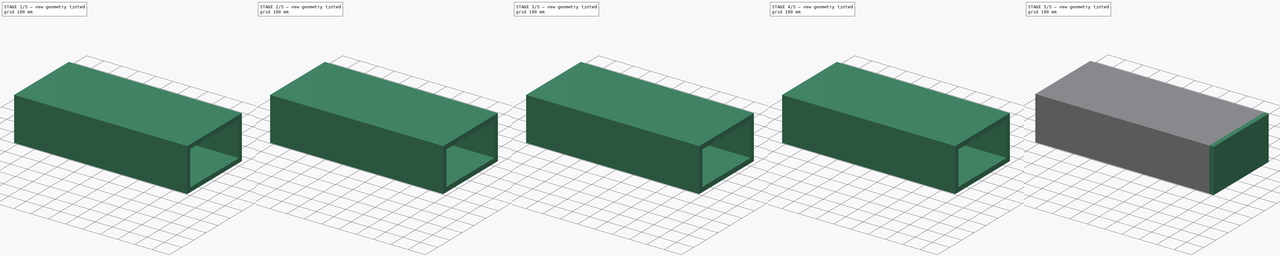
[diagram: build sequence overview — one tinted view per stage of 5, left to right]
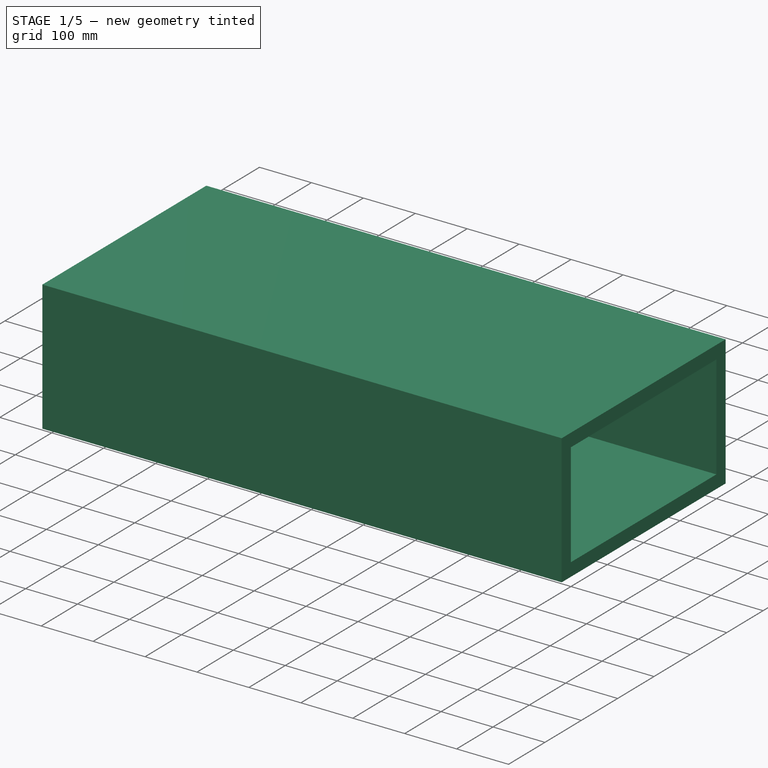
[diagram: stage 1 of 5 — iso view after this stage's code; geometry added in this stage tinted green]
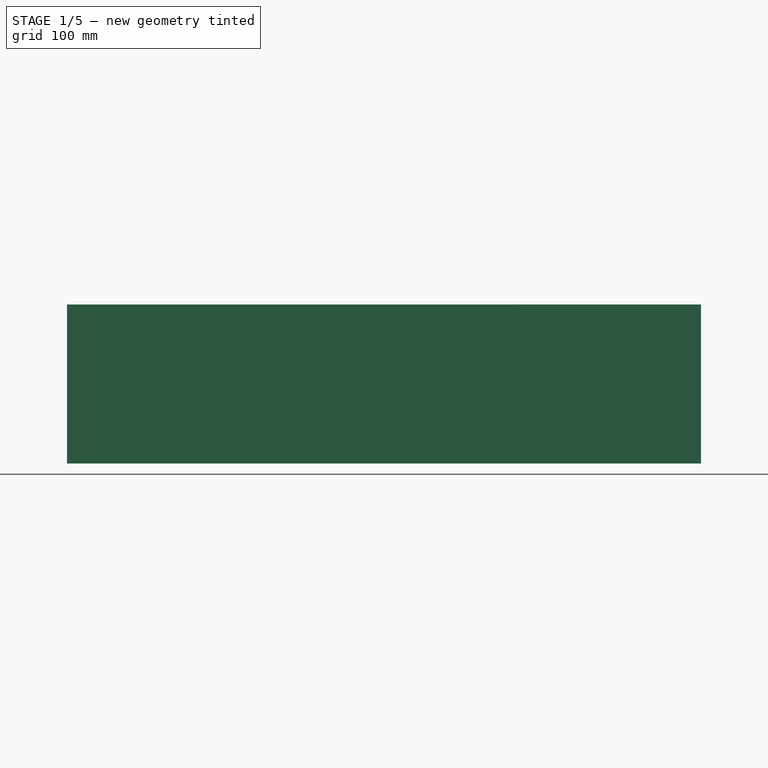
[diagram: stage 1 of 5 — front view after this stage's code; geometry added in this stage tinted green]
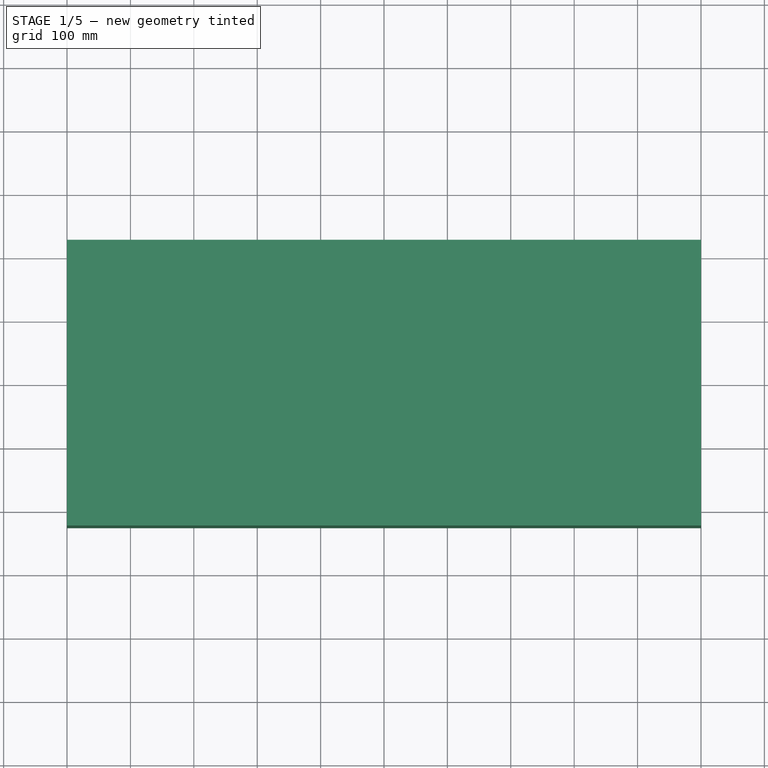
[diagram: stage 1 of 5 — top view after this stage's code; geometry added in this stage tinted green]
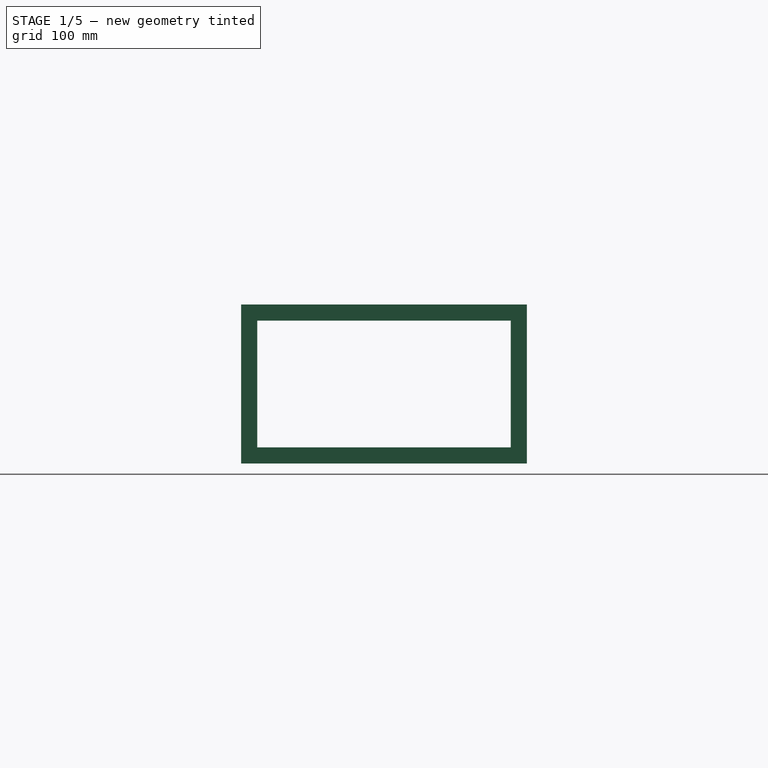
[diagram: stage 1 of 5 — right view after this stage's code; geometry added in this stage tinted green]
FCSTD DOCUMENT  (FreeCAD 0.16R6704 (Git))
Label: Rectangular_duct_reduction
License: All rights reserved
LicenseURL: http://en.wikipedia.org/wiki/All_rights_reserved
objects: Part::FeaturePython×10, App::DocumentObjectGroup×8, Sketcher::SketchObject×6, Part::Extrusion×4, Part::Sweep×2, Part::Thickness×2, Part::Cut×2, Part::MultiFuse×1, Spreadsheet::Sheet×1
note: 27 computed .brp shape members not serialized (recipe doc carries the construction recipe); baked Part::Feature solids carry a one-line shape summary decoded from their .brp

FEATURE [Sketcher::SketchObject] Sketch002  label="LENGHT_rectangular_duct"
  expr: Constraints.Duct_length = Settings_rectangular_duct.length_piece
  sketch-geometry (1):
    g0: LineSegment StartX=0 StartY=0 StartZ=0 EndX=1000 EndY=0 EndZ=0
  constraints (3):
    c: Coincident(g0,g-1)
    c: Horizontal(g0)
    c: DistanceX(g0,g0) = 1000  'Duct_length'
FEATURE [Sketcher::SketchObject] Sketch005  label="DIMENSIONS_rectangle_01"
  Placement = pos=(0,0,0) rot=(0.57735,0.57735,0.57735;2.0944rad)
  expr: Constraints.Height_duct = Settings_rectangular_duct.h_side_1
  expr: Constraints.Duct_width = Settings_rectangular_duct.w_side_1
  sketch-geometry (7):
    g0: LineSegment StartX=-200 StartY=100 StartZ=0 EndX=200 EndY=100 EndZ=0
    g1: LineSegment StartX=200 StartY=100 StartZ=0 EndX=200 EndY=-100 EndZ=0
    g2: LineSegment StartX=200 StartY=-100 StartZ=0 EndX=-200 EndY=-100 EndZ=0
    g3: LineSegment StartX=-200 StartY=-100 StartZ=0 EndX=-200 EndY=100 EndZ=0
    g4: LineSegment [constr] StartX=-200 StartY=100 StartZ=0 EndX=200 EndY=-100 EndZ=0
    g5: LineSegment [constr] StartX=-200 StartY=-100 StartZ=0 EndX=200 EndY=100 EndZ=0
    g6: GeomPoint [constr] X=0 Y=0 Z=0
  constraints (18):
    c: Coincident(g0,g1)
    c: Coincident(g1,g2)
    c: Coincident(g2,g3)
    c: Coincident(g3,g0)
    c: Horizontal(g0)
    c: Horizontal(g2)
    c: Vertical(g1)
    c: Vertical(g3)
    c: DistanceX(g0,g0) = 400  'Duct_width'
    c: DistanceY(g1,g1) = 200  'Height_duct'
    c: Coincident(g4,g0)
    c: Coincident(g4,g1)
    c: Coincident(g5,g2)
    c: Coincident(g5,g0)
    c: PointOnObject(g6,g4)
    c: PointOnObject(g6,g5)
    c: DistanceY(g-1,g6) = 0  'Vertical_distance_axis'
    c: DistanceX(g-1,g6) = 0  'Horizontal_distance_axis'
FEATURE [Part::Sweep] Sweep003  label="Base_01_rectangular_duct"
  Frenet = false
  Sections = -> [Sketch005]
  Solid = true
  Spine = -> Sketch002 [Edge1]
  Transition = 1
FEATURE [Sketcher::SketchObject] Sketch009  label="DIMENSIONS_rectangle_02"
  ExternalGeometry = -> [Sweep003]
  Placement = pos=(1000,0,0) rot=(0.57735,0.57735,0.57735;2.0944rad)
  Support = -> Sweep003 [Face6]
  expr: Constraints.Horizontal_distance_axis = Settings_rectangular_duct.d_h_axis_02
  expr: Constraints.Duct_height = Settings_rectangular_duct.h_side_2
  expr: Constraints.Duct_width = Settings_rectangular_duct.w_side_2
  expr: Constraints.Vertical_distance_axis = Settings_rectangular_duct.d_v_axis_02
  sketch-geometry (10):
    g0: LineSegment [constr] StartX=-200 StartY=100 StartZ=0 EndX=200 EndY=-100 EndZ=0
    g1: LineSegment [constr] StartX=200 StartY=100 StartZ=0 EndX=-200 EndY=-100 EndZ=0
    g2: GeomPoint [constr] X=0 Y=0 Z=0
    g3: LineSegment StartX=-200 StartY=100 StartZ=0 EndX=200 EndY=100 EndZ=0
    g4: LineSegment StartX=200 StartY=100 StartZ=0 EndX=200 EndY=-100 EndZ=0
    g5: LineSegment StartX=200 StartY=-100 StartZ=0 EndX=-200 EndY=-100 EndZ=0
    g6: LineSegment StartX=-200 StartY=-100 StartZ=0 EndX=-200 EndY=100 EndZ=0
    g7: LineSegment [constr] StartX=-200 StartY=100 StartZ=0 EndX=200 EndY=-100 EndZ=0
    g8: LineSegment [constr] StartX=-200 StartY=-100 StartZ=0 EndX=200 EndY=100 EndZ=0
    g9: GeomPoint [constr] X=0 Y=0 Z=0
  constraints (24):
    c: Coincident(g0,g-4)
    c: Coincident(g0,g-6)
    c: Coincident(g1,g-5)
    c: Coincident(g1,g-6)
    c: PointOnObject(g2,g1)
    c: PointOnObject(g2,g0)
    c: Coincident(g3,g4)
    c: Coincident(g4,g5)
    c: Coincident(g5,g6)
    c: Coincident(g6,g3)
    c: Horizontal(g3)
    c: Horizontal(g5)
    c: Vertical(g4)
    c: Vertical(g6)
    c: DistanceX(g3,g3) = 400  'Duct_width'
    c: DistanceY(g4,g4) = 200  'Duct_height'
    c: Coincident(g7,g3)
    c: Coincident(g7,g4)
    c: Coincident(g8,g5)
    c: Coincident(g8,g3)
    c: PointOnObject(g9,g8)
    c: PointOnObject(g9,g7)
    c: DistanceY(g-1,g9) = 0  'Vertical_distance_axis'
    c: DistanceX(g-1,g9) = 0  'Horizontal_distance_axis'
FEATURE [Part::Sweep] Sweep011  label="Base_02_rectangular_duct"
  Frenet = false
  Sections = -> [Sketch005,Sketch009]
  Solid = true
  Spine = -> Sketch002 [Edge1]
  Transition = 1
FEATURE [Part::Thickness] Thickness003  label="2.1-Insulation_THICKNESS"
  Faces = -> Sweep011 [Face5,Face6]
  Intersection = false
  Join = 2
  Mode = 0
  SelfIntersection = false
  Value = 25.4
  expr: Value = Settings_rectangular_duct.insu_thickness
FEATURE [Part::FeaturePython] Clone007  label="Clone of 2.1-Insulation"  # Draft clone (typed FeaturePython)
  Objects = -> [Thickness003]
  Scale = (1,1,1)
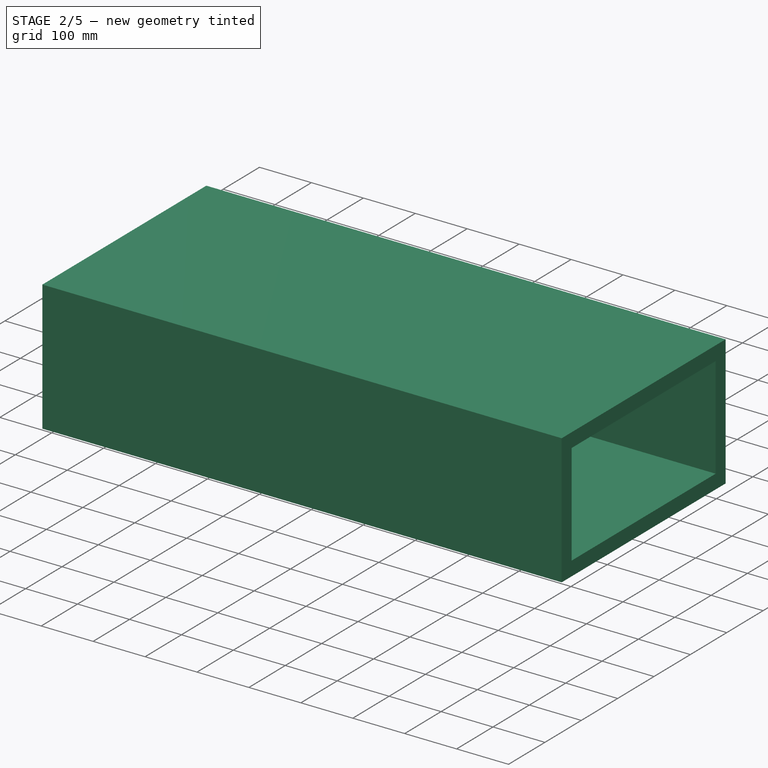
[diagram: stage 2 of 5 — iso view after this stage's code; geometry added in this stage tinted green]
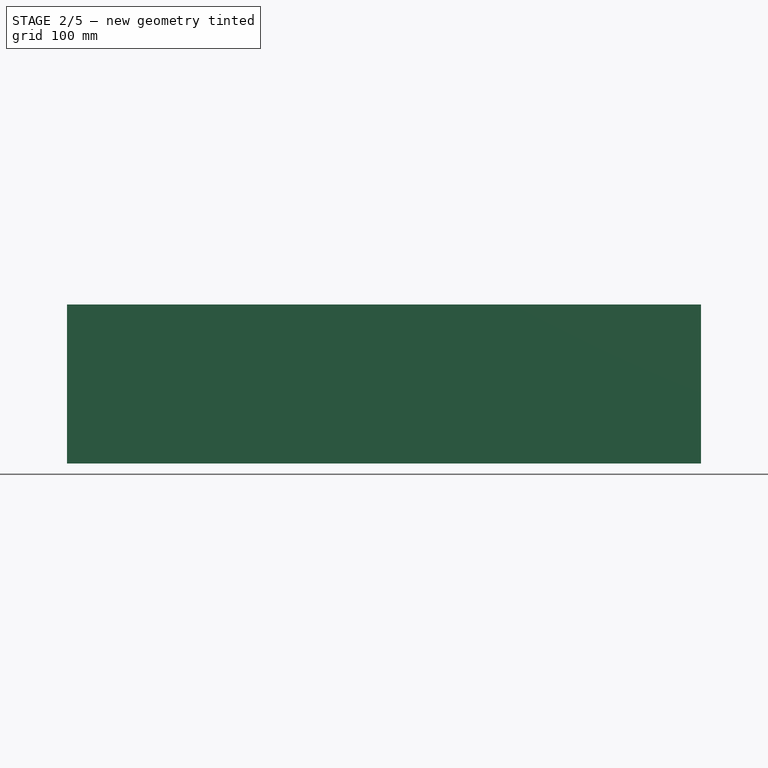
[diagram: stage 2 of 5 — front view after this stage's code; geometry added in this stage tinted green]
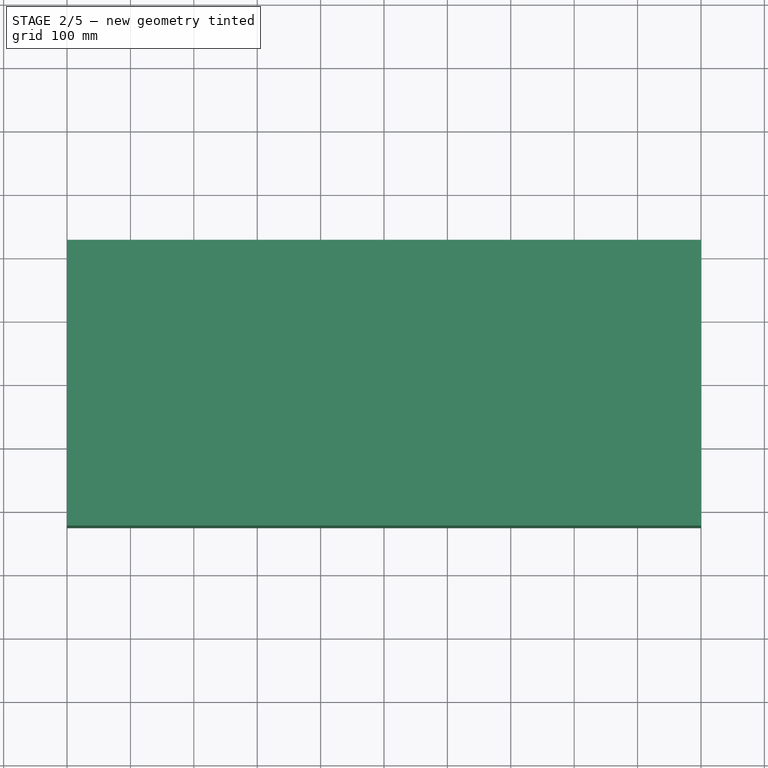
[diagram: stage 2 of 5 — top view after this stage's code; geometry added in this stage tinted green]
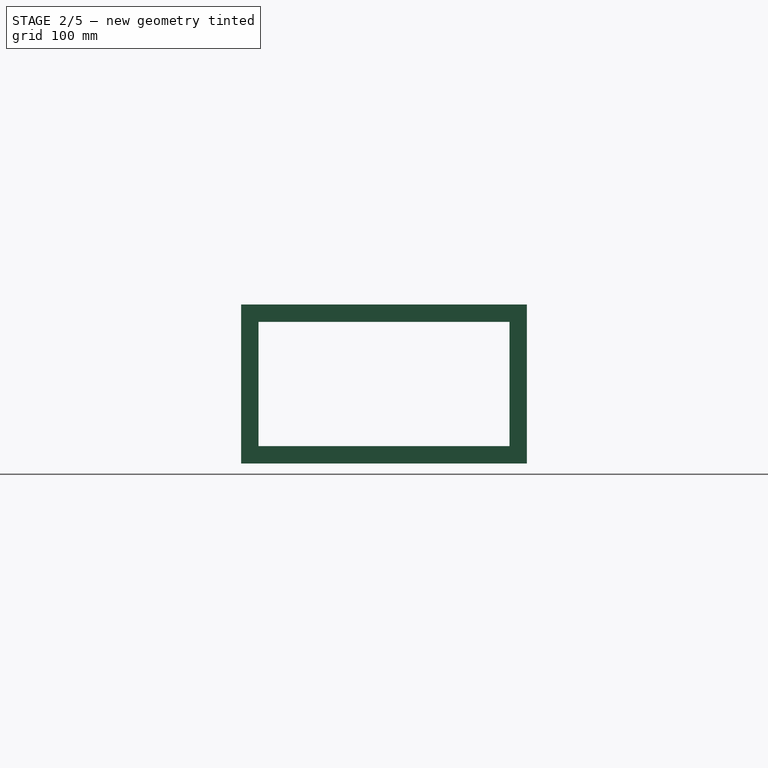
[diagram: stage 2 of 5 — right view after this stage's code; geometry added in this stage tinted green]
FEATURE [App::DocumentObjectGroup] Grupo008  label="A-Bases "
  Group = -> [Sweep003,Sweep011,Sketch002,Sketch,Sketch020]
FEATURE [Part::Thickness] Thickness002  label="1.1-Rectangular_duct_SHEET_THICKNESS"
  Faces = -> Sweep011 [Face5,Face6]
  Intersection = false
  Join = 0
  Mode = 0
  SelfIntersection = false
  Value = -2
  expr: Value = Settings_rectangular_duct.sheet_thickness * -1
FEATURE [Part::FeaturePython] Clone006  label="Clone of 1.1-Rectangular_duct_SHEET_THICKNESS"  # Draft clone (typed FeaturePython)
  Objects = -> [Thickness002]
  Scale = (1,1,1)
FEATURE [App::DocumentObjectGroup] Grupo029  label="Flanges"
  Group = -> [Clone004,Clone005,Array004,Array005]
FEATURE [Part::FeaturePython] Array006  label="1.1-Rectangular_duct_SHEET_THICKNESS001"  # Draft array (typed FeaturePython)
  Angle = 360
  ArrayType = 0
  Axis = (0,0,1)
  Base = -> Clone006
  Center = (0,0,0)
  Fuse = false
  IntervalAxis = (0,0,0)
  IntervalX = (1000,0,0)
  IntervalY = (0,0,0)
  IntervalZ = (0,0,0)
  NumberPolar = 1
  NumberX = 1
  NumberY = 1
  NumberZ = 1
  expr: NumberX = Settings_rectangular_duct.n_units
  expr: IntervalX.x = Settings_rectangular_duct.length_piece
FEATURE [Part::FeaturePython] Array007  label="2.1-Insulation"  # Draft array (typed FeaturePython)
  Angle = 360
  ArrayType = 0
  Axis = (0,0,1)
  Base = -> Clone007
  Center = (0,0,0)
  Fuse = false
  IntervalAxis = (0,0,0)
  IntervalX = (1000,0,0)
  IntervalY = (0,0,0)
  IntervalZ = (0,0,0)
  NumberPolar = 1
  NumberX = 1
  NumberY = 1
  NumberZ = 1
  expr: NumberX = Settings_rectangular_duct.n_units
  expr: IntervalX.x = Settings_rectangular_duct.length_piece
FEATURE [App::DocumentObjectGroup] Grupo028  label="No_flanges"
  Group = -> [Clone006,Clone007,Array006,Array007]
FEATURE [App::DocumentObjectGroup] Grupo027  label="B-Final_parts_clones"
  Group = -> [Grupo028,Grupo029,Group018]
FEATURE [App::DocumentObjectGroup] Grupo002  label="Rectangular_duct_reduction"
  Group = -> [Spreadsheet002,Group010,Grupo027]
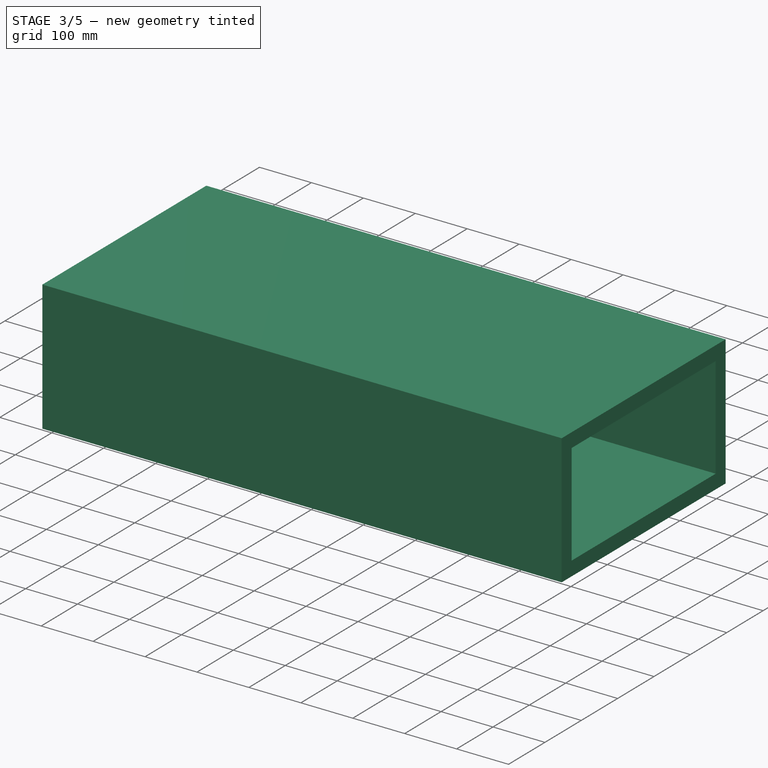
[diagram: stage 3 of 5 — iso view after this stage's code; geometry added in this stage tinted green]
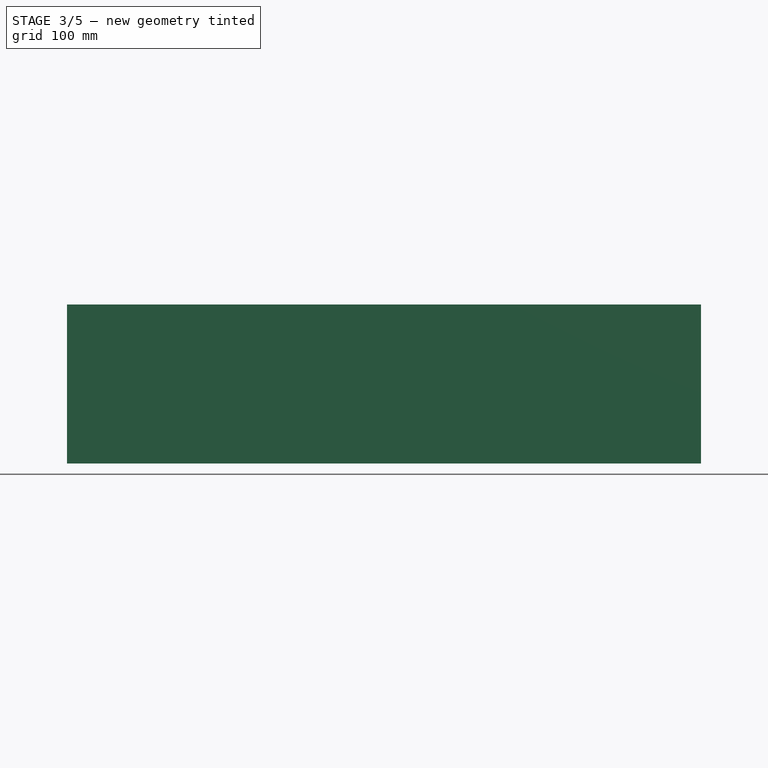
[diagram: stage 3 of 5 — front view after this stage's code; geometry added in this stage tinted green]
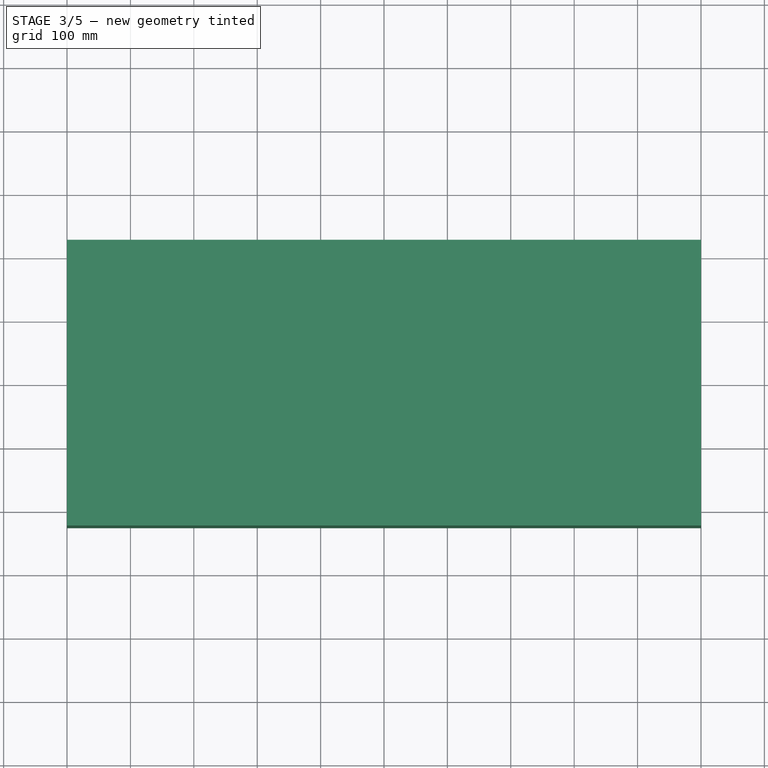
[diagram: stage 3 of 5 — top view after this stage's code; geometry added in this stage tinted green]
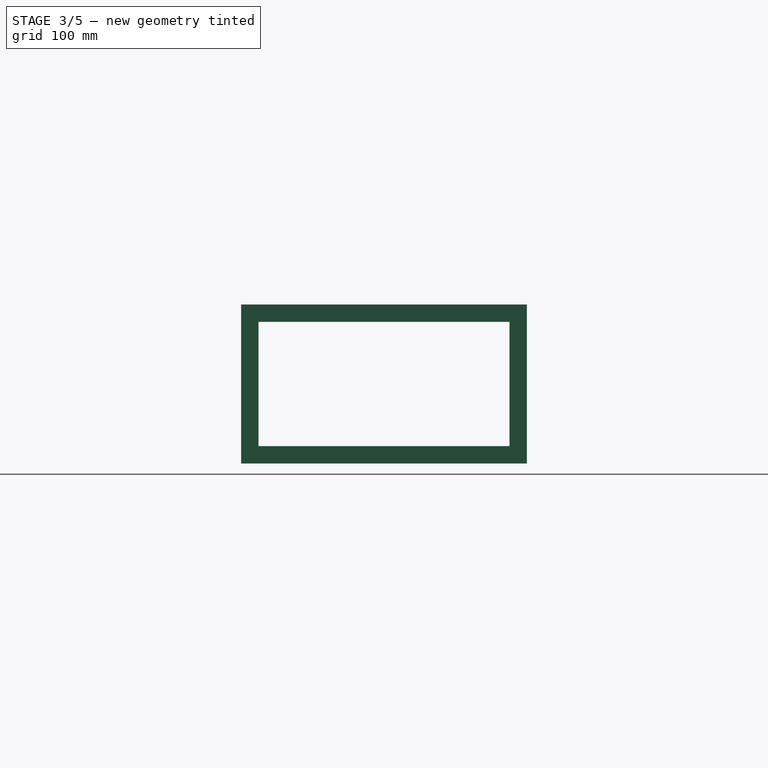
[diagram: stage 3 of 5 — right view after this stage's code; geometry added in this stage tinted green]
FEATURE [Sketcher::SketchObject] Sketch020  label="FLANGE_HEIGHT_01"
  ExternalGeometry = -> [Sweep003]
  Placement = pos=(0,0,0) rot=(0.57735,-0.57735,-0.57735;2.0944rad)
  Support = -> Sweep003 [Face5]
  expr: Constraints.Flange = Settings_rectangular_duct.flange_height
  sketch-geometry (12):
    g0: LineSegment StartX=-200 StartY=100 StartZ=0 EndX=200 EndY=100 EndZ=0
    g1: LineSegment StartX=200 StartY=100 StartZ=0 EndX=200 EndY=-100 EndZ=0
    g2: LineSegment StartX=200 StartY=-100 StartZ=0 EndX=-200 EndY=-100 EndZ=0
    g3: LineSegment StartX=-200 StartY=-100 StartZ=0 EndX=-200 EndY=100 EndZ=0
    g4: LineSegment StartX=-215 StartY=115 StartZ=0 EndX=215 EndY=115 EndZ=0
    g5: LineSegment StartX=215 StartY=115 StartZ=0 EndX=215 EndY=-115 EndZ=0
    g6: LineSegment StartX=215 StartY=-115 StartZ=0 EndX=-215 EndY=-115 EndZ=0
    g7: LineSegment StartX=-215 StartY=-115 StartZ=0 EndX=-215 EndY=115 EndZ=0
    g8: LineSegment [constr] StartX=-200 StartY=100 StartZ=0 EndX=-200 EndY=115 EndZ=0
    g9: LineSegment [constr] StartX=-200 StartY=100 StartZ=0 EndX=-215 EndY=100 EndZ=0
    g10: LineSegment [constr] StartX=200 StartY=-100 StartZ=0 EndX=215 EndY=-100 EndZ=0
    g11: LineSegment [constr] StartX=200 StartY=-115 StartZ=0 EndX=200 EndY=-100 EndZ=0
  constraints (38):
    c: Coincident(g0,g1)
    c: Coincident(g1,g2)
    c: Coincident(g2,g3)
    c: Coincident(g3,g0)
    c: Horizontal(g0)
    c: Horizontal(g2)
    c: Vertical(g1)
    c: Vertical(g3)
    c: Coincident(g4,g5)
    c: Coincident(g5,g6)
    c: Coincident(g6,g7)
    c: Coincident(g7,g4)
    c: Horizontal(g4)
    c: Horizontal(g6)
    c: Vertical(g5)
    c: Vertical(g7)
    c: DistanceX(g4,g0) = 15  'Flange'
    c: PointOnObject(g8,g0)
    c: PointOnObject(g9,g3)
    c: PointOnObject(g9,g7)
    c: PointOnObject(g10,g1)
    c: PointOnObject(g10,g5)
    c: PointOnObject(g8,g4)
    c: Angle(g8) = 1.5708
    c: Angle(g9) = 3.14159
    c: Coincident(g0,g9)
    c: Coincident(g0,g8)
    c: Angle(g10) = 0
    c: Angle(g11) = 1.5708
    c: PointOnObject(g11,g2)
    c: PointOnObject(g11,g6)
    c: Equal(g10,g11)
    c: Equal(g11,g8)
    c: Equal(g8,g9)
    c: Coincident(g10,g1)
    c: Coincident(g11,g1)
    c: Coincident(g2,g-5)
    c: Coincident(g-6,g0)
FEATURE [Part::Extrusion] Extrude_Sketch020  label="Flange_THICKNESS_01"
  Base = -> Sketch020
  Dir = (2,0,0)
  Solid = true
  expr: Dir.x = Settings_rectangular_duct.flange_thickness
FEATURE [Part::Extrusion] Extrude_Sketch009  label="03-Cap"
  Base = -> Sketch009
  Dir = (-2,0,0)
  Solid = true
  expr: Dir.x = Settings_rectangular_duct.sheet_thickness * -1
FEATURE [Sketcher::SketchObject] Sketch  label="FLANGE_HEIGHT_02"
  ExternalGeometry = -> [Extrude_Sketch009]
  Placement = pos=(1000,0,0) rot=(0.57735,0.57735,0.57735;2.0944rad)
  Support = -> Extrude_Sketch009 [Face5]
  expr: Constraints.Flange = Settings_rectangular_duct.flange_height
  sketch-geometry (12):
    g0: LineSegment StartX=-200 StartY=100 StartZ=0 EndX=200 EndY=100 EndZ=0
    g1: LineSegment StartX=200 StartY=100 StartZ=0 EndX=200 EndY=-100 EndZ=0
    g2: LineSegment StartX=200 StartY=-100 StartZ=0 EndX=-200 EndY=-100 EndZ=0
    g3: LineSegment StartX=-200 StartY=-100 StartZ=0 EndX=-200 EndY=100 EndZ=0
    g4: LineSegment StartX=-215 StartY=115 StartZ=0 EndX=215 EndY=115 EndZ=0
    g5: LineSegment StartX=215 StartY=115 StartZ=0 EndX=215 EndY=-115 EndZ=0
    g6: LineSegment StartX=215 StartY=-115 StartZ=0 EndX=-215 EndY=-115 EndZ=0
    g7: LineSegment StartX=-215 StartY=-115 StartZ=0 EndX=-215 EndY=115 EndZ=0
    g8: LineSegment [constr] StartX=-215 StartY=100 StartZ=0 EndX=-200 EndY=100 EndZ=0
    g9: LineSegment [constr] StartX=-200 StartY=100 StartZ=0 EndX=-200 EndY=115 EndZ=0
    g10: LineSegment [constr] StartX=200 StartY=-100 StartZ=0 EndX=215 EndY=-100 EndZ=0
    g11: LineSegment [constr] StartX=200 StartY=-100 StartZ=0 EndX=200 EndY=-115 EndZ=0
  constraints (38):
    c: Coincident(g0,g1)
    c: Coincident(g1,g2)
    c: Coincident(g2,g3)
    c: Coincident(g3,g0)
    c: Horizontal(g0)
    c: Horizontal(g2)
    c: Vertical(g1)
    c: Vertical(g3)
    c: Coincident(g4,g5)
    c: Coincident(g5,g6)
    c: Coincident(g6,g7)
    c: Coincident(g7,g4)
    c: Horizontal(g4)
    c: Horizontal(g6)
    c: Vertical(g5)
    c: Vertical(g7)
    c: DistanceX(g4,g0) = 15  'Flange'
    c: PointOnObject(g8,g7)
    c: PointOnObject(g9,g0)
    c: PointOnObject(g10,g1)
    c: PointOnObject(g11,g6)
    c: PointOnObject(g9,g4)
    c: PointOnObject(g8,g3)
    c: Angle(g9) = 1.5708
    c: Angle(g8) = 0
    c: PointOnObject(g10,g5)
    c: Angle(g10) = 0
    c: PointOnObject(g11,g2)
    c: Coincident(g11,g1)
    c: Angle(g11) = -1.5708
    c: Coincident(g1,g10)
    c: Coincident(g9,g0)
    c: Coincident(g0,g8)
    c: Equal(g8,g9)
    c: Equal(g9,g10)
    c: Equal(g10,g11)
    c: Coincident(g-5,g0)
    c: Coincident(g-6,g2)
FEATURE [Part::Extrusion] Extrude_Sketch  label="Flange_THICKNESS_02"
  Base = -> Sketch
  Dir = (-2,0,0)
  Solid = true
  expr: Dir.x = Settings_rectangular_duct.flange_thickness * -1
FEATURE [Part::Cut] Cut002  label="Cut"
  Base = -> Thickness003
  Tool = -> Extrude_Sketch020
FEATURE [Part::Cut] Cut003  label="02-Insulation "
  Base = -> Cut002
  Tool = -> Extrude_Sketch
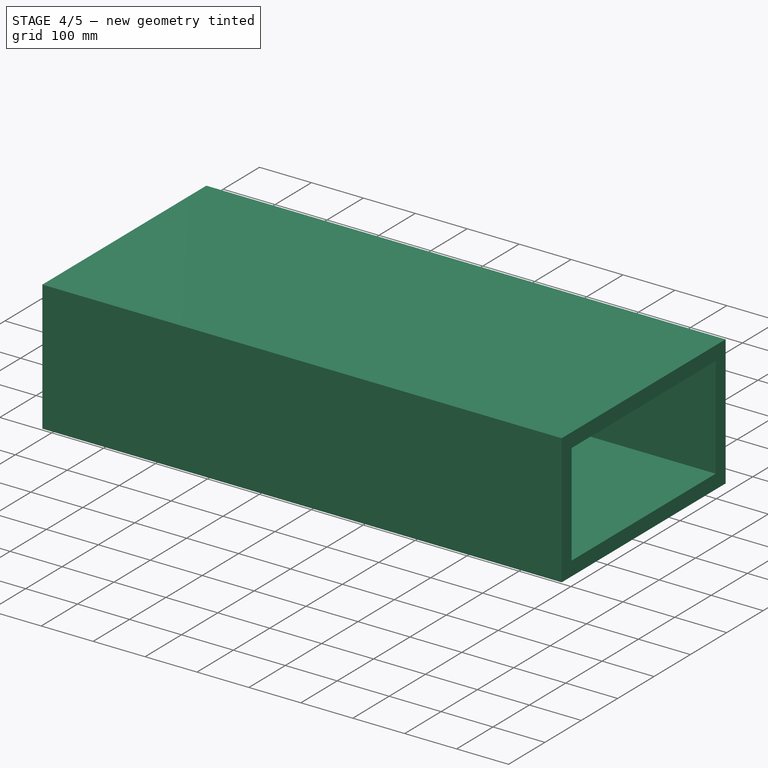
[diagram: stage 4 of 5 — iso view after this stage's code; geometry added in this stage tinted green]
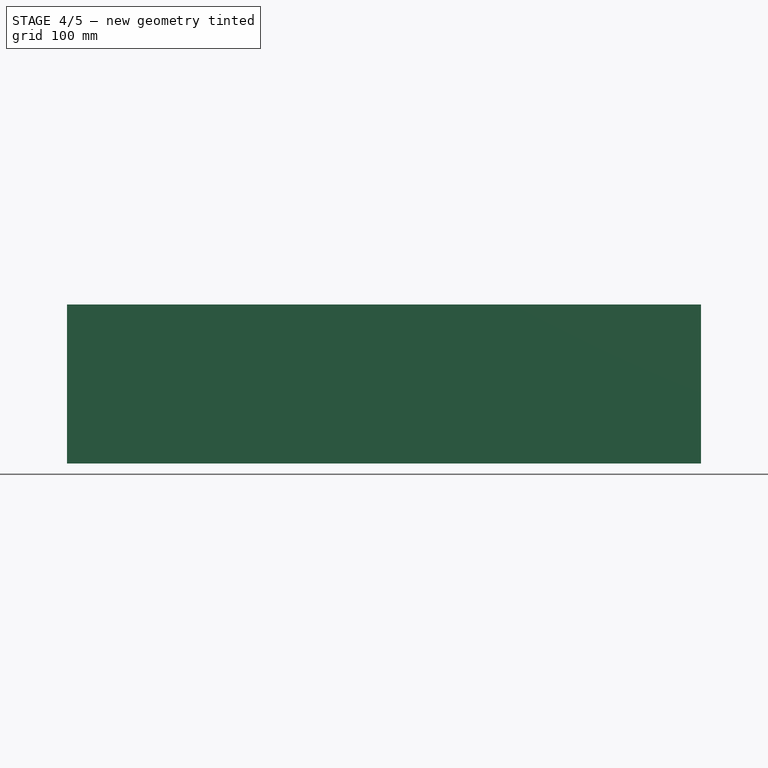
[diagram: stage 4 of 5 — front view after this stage's code; geometry added in this stage tinted green]
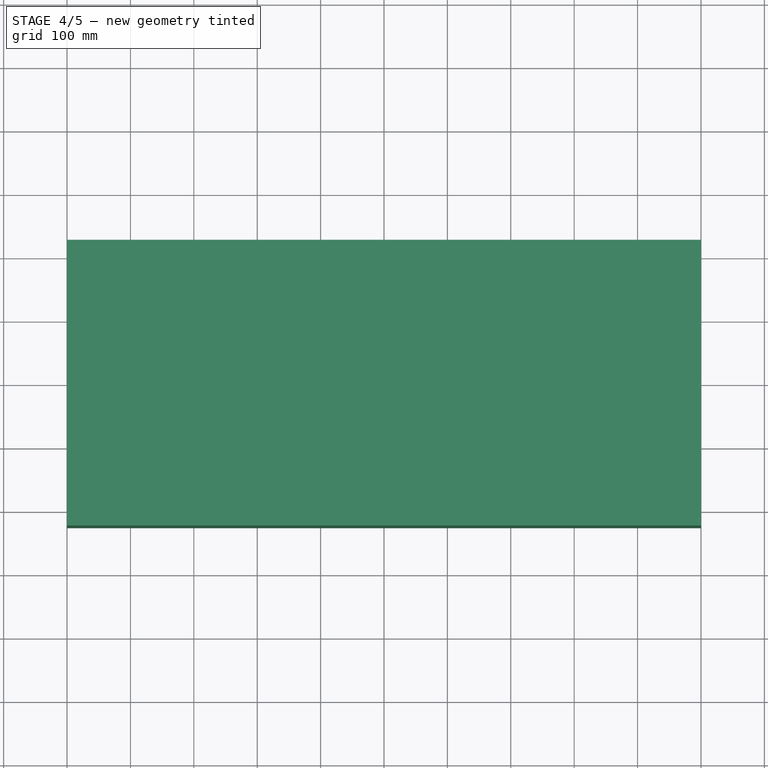
[diagram: stage 4 of 5 — top view after this stage's code; geometry added in this stage tinted green]
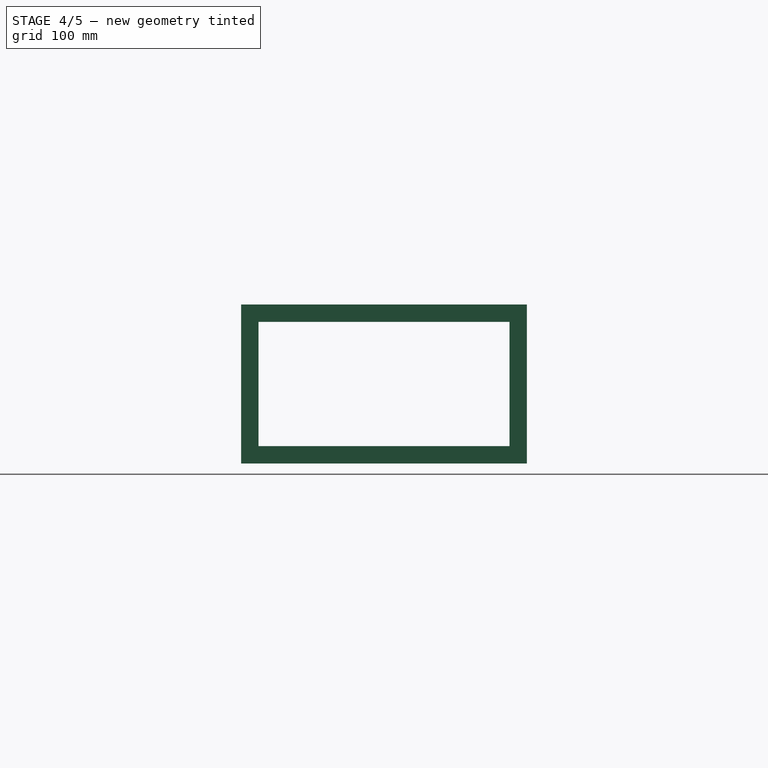
[diagram: stage 4 of 5 — right view after this stage's code; geometry added in this stage tinted green]
FEATURE [Part::MultiFuse] Fusion001  label="01-Rectangular_duct_flanges"
  Shapes = -> [Thickness002,Extrude_Sketch,Extrude_Sketch020]
FEATURE [Part::FeaturePython] Clone004  label="Clone of 01-Duto_retangular_flanges (Rectangular_duct_flanges)"  # Draft clone (typed FeaturePython)
  Objects = -> [Fusion001]
  Scale = (1,1,1)
FEATURE [Part::FeaturePython] Clone005  label="Clone of 02-Isolamento (Insulation) "  # Draft clone (typed FeaturePython)
  Objects = -> [Cut003]
  Scale = (1,1,1)
FEATURE [Part::FeaturePython] Array005  label="02-Isolamento (Insulation) 007"  # Draft array (typed FeaturePython)
  Angle = 360
  ArrayType = 0
  Axis = (0,0,1)
  Base = -> Clone005
  Center = (0,0,0)
  Fuse = false
  IntervalAxis = (0,0,0)
  IntervalX = (1000,0,0)
  IntervalY = (0,0,0)
  IntervalZ = (0,0,0)
  NumberPolar = 1
  NumberX = 1
  NumberY = 1
  NumberZ = 1
  expr: NumberX = Settings_rectangular_duct.n_units
  expr: IntervalX.x = Settings_rectangular_duct.length_piece
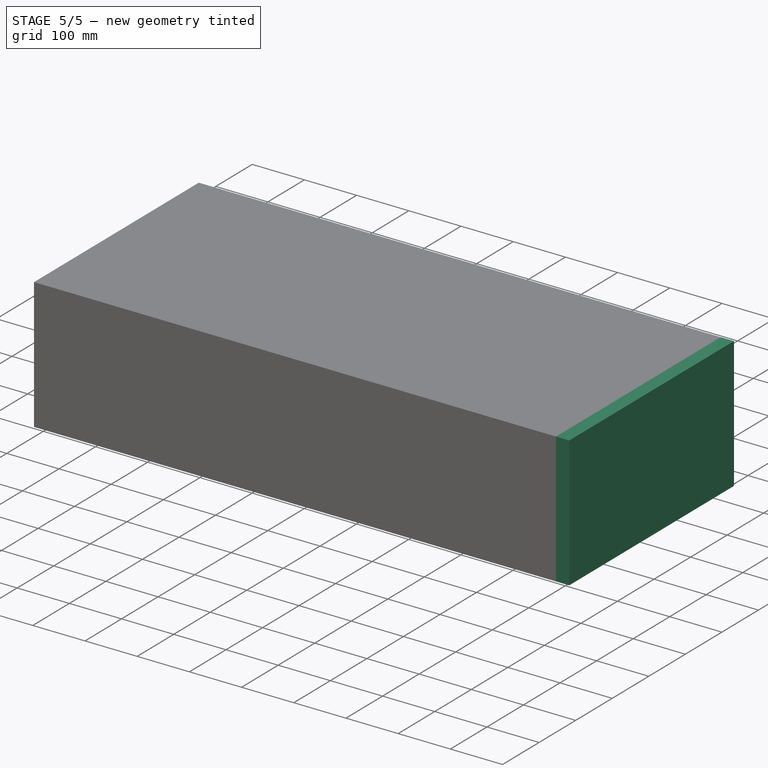
[diagram: stage 5 of 5 — iso view after this stage's code; geometry added in this stage tinted green]
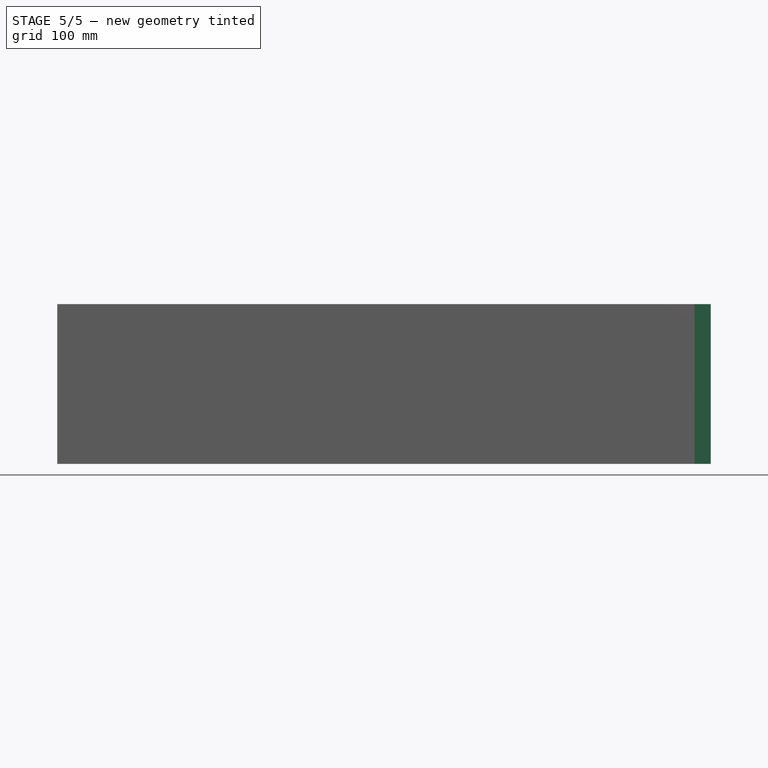
[diagram: stage 5 of 5 — front view after this stage's code; geometry added in this stage tinted green]
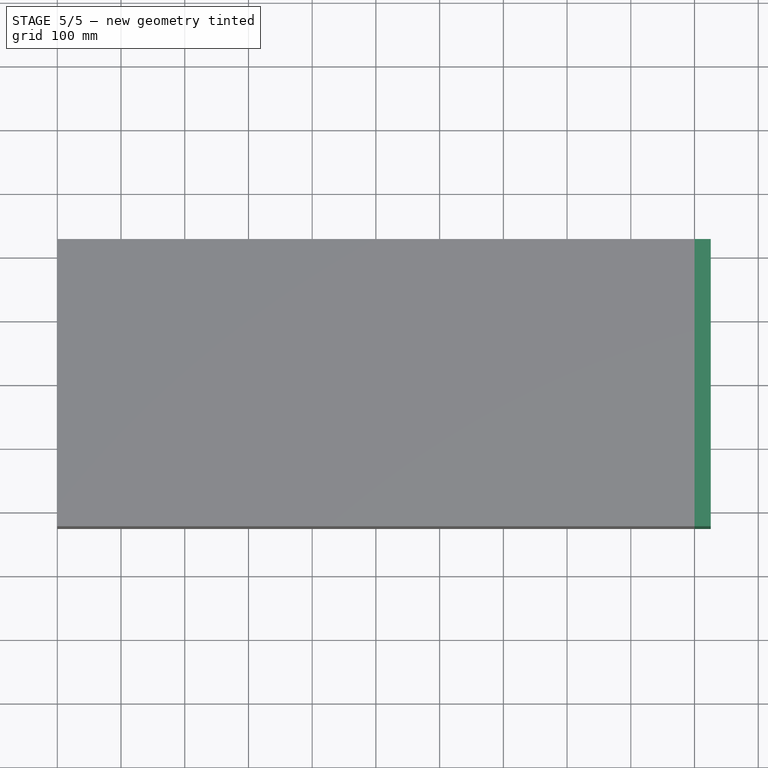
[diagram: stage 5 of 5 — top view after this stage's code; geometry added in this stage tinted green]
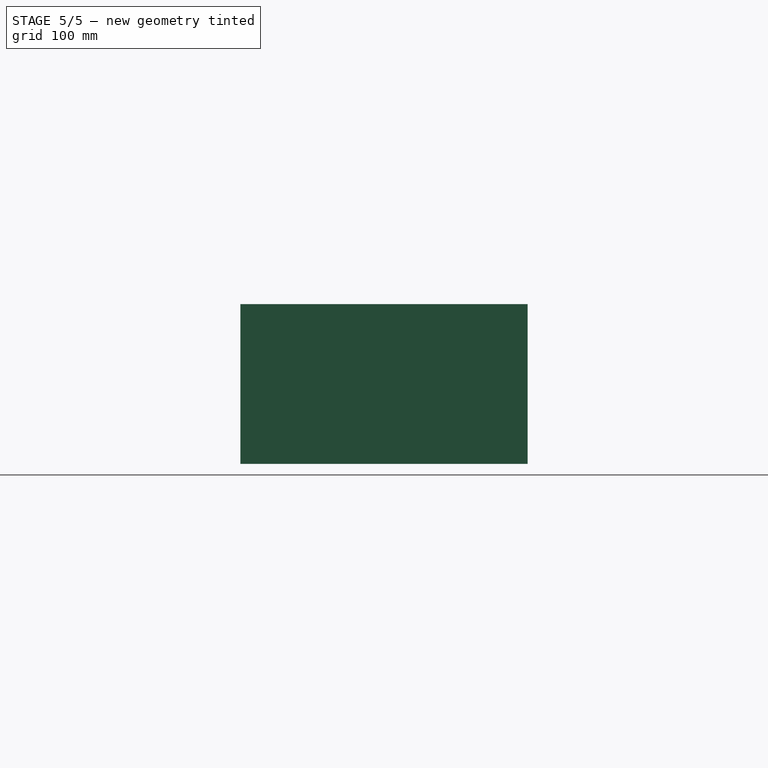
[diagram: stage 5 of 5 — right view after this stage's code; geometry added in this stage tinted green]
FEATURE [Part::FeaturePython] Clone008  label="Clone of 03-Tapa (Cap) "  # Draft clone (typed FeaturePython)
  Objects = -> [Extrude_Sketch009]
  Scale = (1,1,1)
  expr: Placement.Base.x = Spreadsheet002.total_length - Settings_rectangular_duct.length_piece
FEATURE [Sketcher::SketchObject] Sketch057
  ExternalGeometry = -> [Thickness003]
  Placement = pos=(1000,0,0) rot=(0.57735,0.57735,0.57735;2.0944rad)
  Support = -> Thickness003 [Face5]
  sketch-geometry (4):
    g0: LineSegment StartX=225.4 StartY=125.4 StartZ=0 EndX=-225.4 EndY=125.4 EndZ=0
    g1: LineSegment StartX=-225.4 StartY=125.4 StartZ=0 EndX=-225.4 EndY=-125.4 EndZ=0
    g2: LineSegment StartX=-225.4 StartY=-125.4 StartZ=0 EndX=225.4 EndY=-125.4 EndZ=0
    g3: LineSegment StartX=225.4 StartY=-125.4 StartZ=0 EndX=225.4 EndY=125.4 EndZ=0
  constraints (10):
    c: Coincident(g0,g1)
    c: Coincident(g1,g2)
    c: Coincident(g2,g3)
    c: Coincident(g3,g0)
    c: Horizontal(g0)
    c: Horizontal(g2)
    c: Vertical(g1)
    c: Vertical(g3)
    c: Coincident(g-4,g0)
    c: Coincident(g-6,g1)
FEATURE [Part::Extrusion] Extrude_Sketch057  label="04-Cap_insulation"
  Base = -> Sketch057
  Dir = (25.4,0,0)
  Solid = true
  expr: Dir.x = Settings_rectangular_duct.insu_thickness
FEATURE [App::DocumentObjectGroup] Grupo026  label="B-Partes (Parts) "
  Group = -> [Fusion001,Cut003,Extrude_Sketch009,Extrude_Sketch057]
FEATURE [App::DocumentObjectGroup] Group010  label="A-Components"
  Group = -> [Grupo008,Grupo026]
FEATURE [Part::FeaturePython] Clone041  label="Clone of 04-Isolamento_tapa (Cap_insulation)"  # Draft clone (typed FeaturePython)
  Objects = -> [Extrude_Sketch057]
  Scale = (1,1,1)
  expr: Placement.Base.x = Settings_rectangular_duct.total_length - Settings_rectangular_duct.length_piece
FEATURE [App::DocumentObjectGroup] Group018  label="Caps"
  Group = -> [Clone008,Clone041]
FEATURE [Spreadsheet::Sheet] Spreadsheet002  label="Settings_rectangular_duct"
  cells = A1=Dimensionamento - Settings; D2=Comprimento total _Total length; A3=01. Comprimento da peça - Piece length:; B3(length_piece)=1000; C3=Alias: length_piece; D3(total_length)==B3 * B23; A5=02. Lado 1 - Side 1; A6=2.1. Largura do lado 1 - Width side 1:; B6(w_side_1)=400; C6=Alias: w_side_1; A7=2.2. Altura do lado 1 - Height side 1:; B7(h_side_1)=200; C7=Alias: h_side_1; A9=03. Lado 2 - Side 2; A10=3.1. Largura do lado 2 - Width side 2:; B10(w_side_2)=400; C10=Alias: w_side_2; A11=3.2. Altura do lado 2 - Height side 2:; B11(h_side_2)=200; C11=Alias: h_side_2; A12=3.3. Distância horizontal do eixo - Horizontal distance axis:; B12(d_h_axis_02)=0; C12=Alias: d_h_axis_02; A13=3.4. Distância vertical do eixo - Vertical distance axis:; B13(d_v_axis_02)=0; C13=Alias: d_v_axis_02; A15=04. Espessura da chapa - Sheet thickness:; B15(sheet_thickness)=2; C15=Alias: sheet_thickness; A17=05. Flanges; A18=5.1. Altura flanges - Flanges height:; B18(flange_height)=15; C18=Alias: flange_height; A19=5.2. Espessura flanges - Flanges thickness:; B19(flange_thickness)=2; C19=Alias: flange_thickness; A21=06. Espessura isolamento - Insulation thickness:; B21(insu_thickness)=25.4; C21=Alias: insu_thickness; A23=07. Número de repetições - Number of repetitions:; B23(n_units)=1; C23=Alias: n_units
FEATURE [Part::FeaturePython] Array004  label="01-Duto_retangular_flanges (Rectangular_duct_flanges) "  # Draft array (typed FeaturePython)
  Angle = 360
  ArrayType = 0
  Axis = (0,0,1)
  Base = -> Clone004
  Center = (0,0,0)
  Fuse = false
  IntervalAxis = (0,0,0)
  IntervalX = (1000,0,0)
  IntervalY = (0,0,0)
  IntervalZ = (0,0,0)
  NumberPolar = 1
  NumberX = 1
  NumberY = 1
  NumberZ = 1
  expr: NumberX = Settings_rectangular_duct.n_units
  expr: IntervalX.x = Settings_rectangular_duct.length_piece
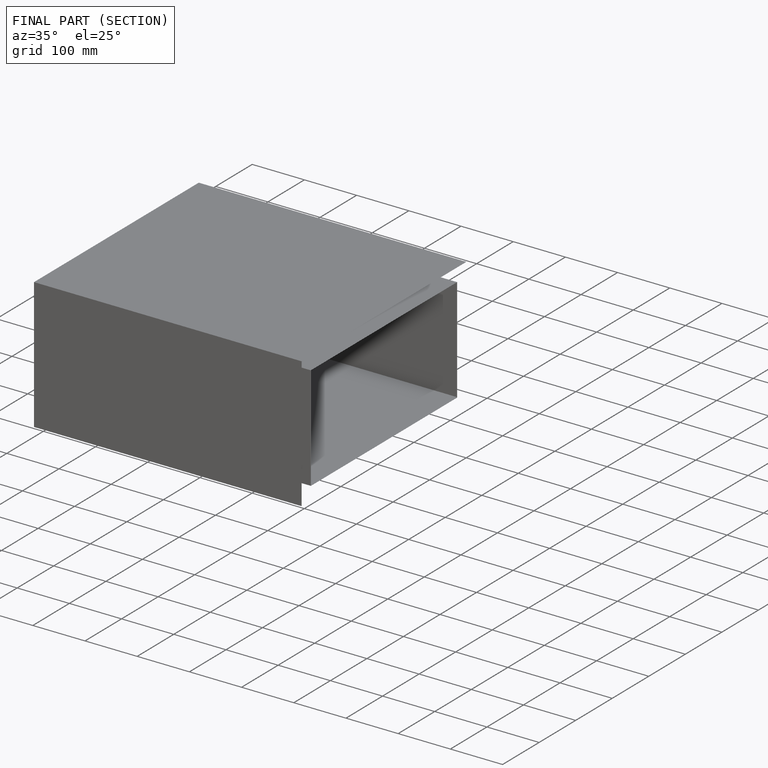
[diagram: finished part — half-section view (interior)]
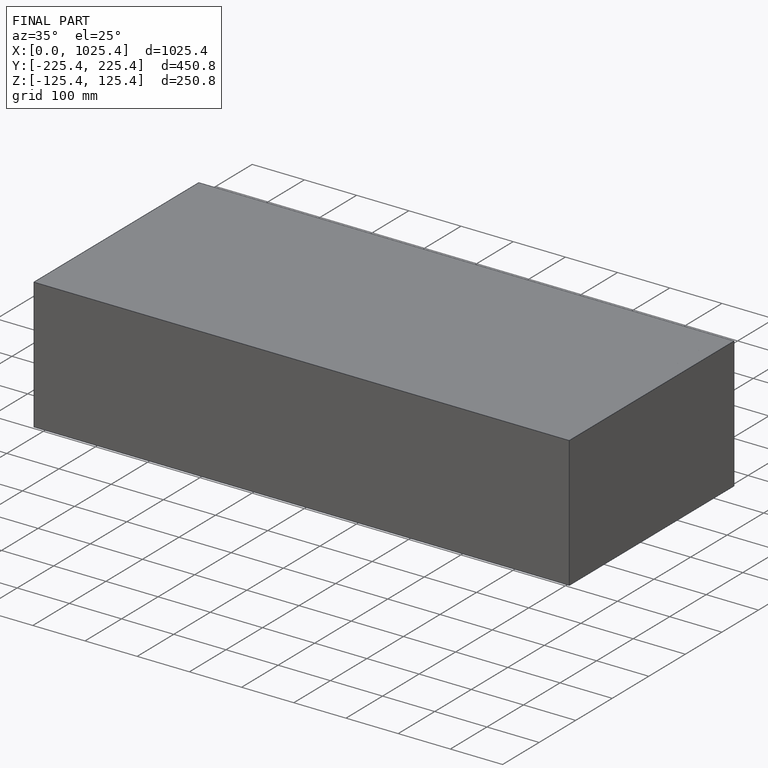
[diagram: finished part — iso view with bounding-box wireframe]
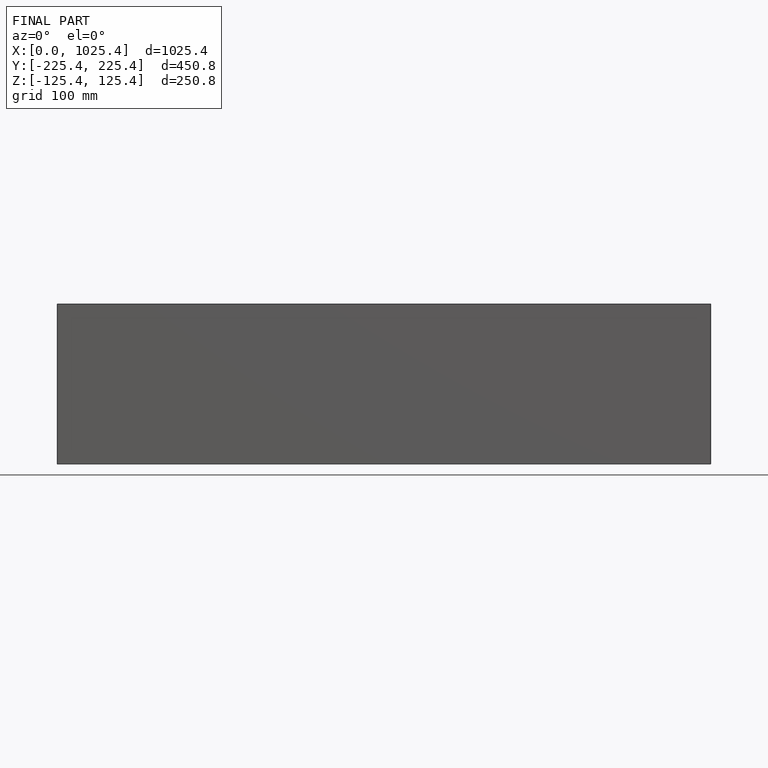
[diagram: finished part — front view with bounding-box wireframe]
